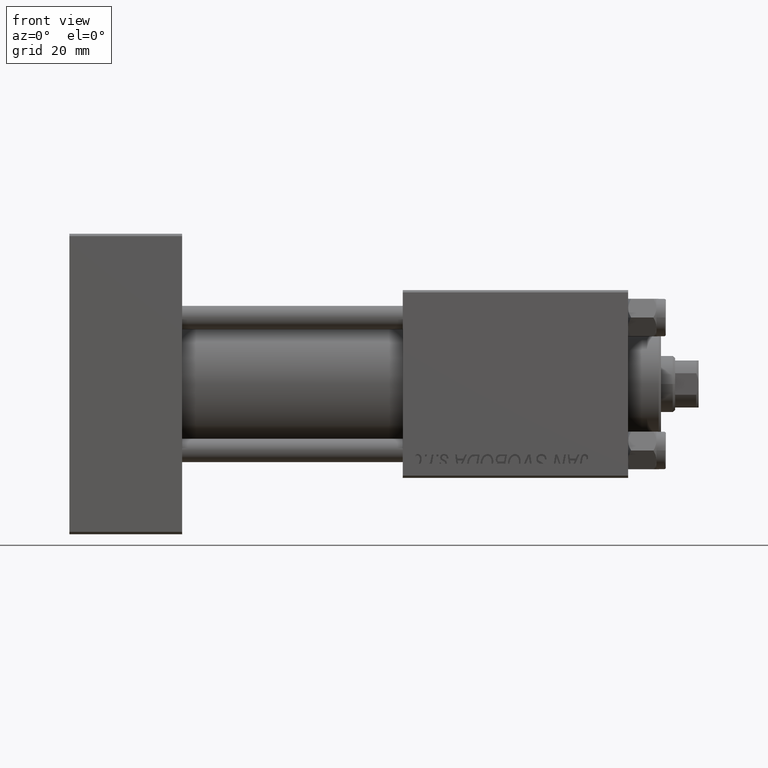
[diagram: clean part render]
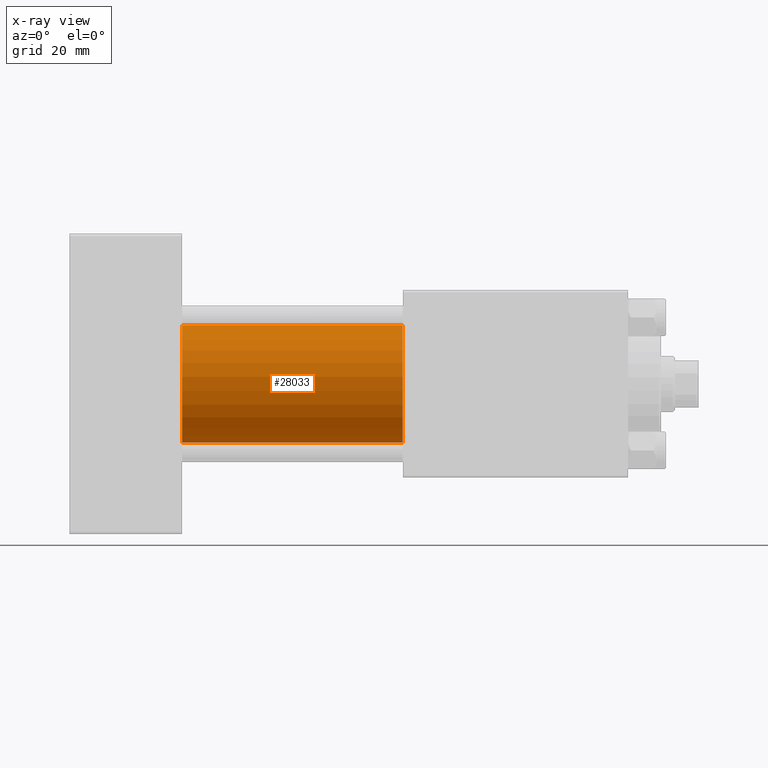
[diagram: x-ray — body ghosted, one internal face saturated and labeled with its STEP entity id]
A machine part, front view, then the same camera in x-ray: the body is ghosted and one INTERNAL B-rep face — a face not visible from any outside direction — is saturated and labeled: STEP entity #28033.
In plain terms, the highlighted cylindrical surface (partial cylindrical patch) has radius 12.5 mm, axis along (-1, -0, -0).
Its self-contained STEP definition (entity closure, byte-faithful):
#2 = LINE ( 'NONE', #15886, #1586 ) ;
#459 = AXIS2_PLACEMENT_3D ( 'NONE', #13330, #1845, #45173 ) ;
#1586 = VECTOR ( 'NONE', #4423, 1000.000000000000000 ) ;
#1845 = DIRECTION ( 'NONE',  ( -1.000000000000000000, -0.000000000000000000, -0.000000000000000000 ) ) ;
#2883 = CARTESIAN_POINT ( 'NONE',  ( 71.00000000000001421, -1.071276715031019515E-15, -12.49999999999999645 ) ) ;
#3508 = VERTEX_POINT ( 'NONE', #9058 ) ;
#4423 = DIRECTION ( 'NONE',  ( -1.000000000000000000, -0.000000000000000000, -0.000000000000000000 ) ) ;
#8198 = CARTESIAN_POINT ( 'NONE',  ( 24.00000000000000000, -1.071276715031019515E-15, -12.49999999999999645 ) ) ;
#8220 = ORIENTED_EDGE ( 'NONE', *, *, #18058, .T. ) ;
#9058 = CARTESIAN_POINT ( 'NONE',  ( 71.00000000000001421, -2.602085213965210642E-15, 12.49999999999999645 ) ) ;
#10712 = CARTESIAN_POINT ( 'NONE',  ( 71.00000000000001421, -1.071276715031019515E-15, -12.49999999999999645 ) ) ;
#11536 = VECTOR ( 'NONE', #42041, 1000.000000000000000 ) ;
#13330 = CARTESIAN_POINT ( 'NONE',  ( 71.00000000000001421, -2.602085213965210642E-15, 0.000000000000000000 ) ) ;
#15886 = CARTESIAN_POINT ( 'NONE',  ( 71.00000000000001421, -2.602085213965210642E-15, 12.49999999999999645 ) ) ;
#16332 = AXIS2_PLACEMENT_3D ( 'NONE', #32552, #28868, #48742 ) ;
#17397 = EDGE_CURVE ( 'NONE', #3508, #18396, #2, .T. ) ;
#18058 = EDGE_CURVE ( 'NONE', #3508, #19107, #49963, .T. ) ;
#18396 = VERTEX_POINT ( 'NONE', #38605 ) ;
#19107 = VERTEX_POINT ( 'NONE', #10712 ) ;
#19978 = EDGE_CURVE ( 'NONE', #19107, #30588, #45962, .T. ) ;
#21540 = EDGE_LOOP ( 'NONE', ( #8220, #32243, #38448, #24482 ) ) ;
#23254 = CARTESIAN_POINT ( 'NONE',  ( 71.00000000000001421, -2.602085213965210642E-15, 0.000000000000000000 ) ) ;
#24482 = ORIENTED_EDGE ( 'NONE', *, *, #17397, .F. ) ;
#28033 = ADVANCED_FACE ( 'NONE', ( #40999 ), #37589, .F. ) ;
#28868 = DIRECTION ( 'NONE',  ( 1.000000000000000000, 0.000000000000000000, 0.000000000000000000 ) ) ;
#30588 = VERTEX_POINT ( 'NONE', #8198 ) ;
#32243 = ORIENTED_EDGE ( 'NONE', *, *, #19978, .T. ) ;
#32552 = CARTESIAN_POINT ( 'NONE',  ( 24.00000000000000000, -2.602085213965210642E-15, 0.000000000000000000 ) ) ;
#33898 = EDGE_CURVE ( 'NONE', #18396, #30588, #43856, .T. ) ;
#37589 = CYLINDRICAL_SURFACE ( 'NONE', #459, 12.49999999999999645 ) ;
#38448 = ORIENTED_EDGE ( 'NONE', *, *, #33898, .F. ) ;
#38605 = CARTESIAN_POINT ( 'NONE',  ( 24.00000000000000000, -2.602085213965210642E-15, 12.49999999999999645 ) ) ;
#40999 = FACE_OUTER_BOUND ( 'NONE', #21540, .T. ) ;
#42041 = DIRECTION ( 'NONE',  ( -1.000000000000000000, -0.000000000000000000, -0.000000000000000000 ) ) ;
#43378 = DIRECTION ( 'NONE',  ( 0.000000000000000000, 0.000000000000000000, -1.000000000000000000 ) ) ;
#43856 = CIRCLE ( 'NONE', #16332, 12.49999999999999645 ) ;
#45173 = DIRECTION ( 'NONE',  ( 0.000000000000000000, 0.000000000000000000, 1.000000000000000000 ) ) ;
#45962 = LINE ( 'NONE', #2883, #11536 ) ;
#48742 = DIRECTION ( 'NONE',  ( 0.000000000000000000, 0.000000000000000000, -1.000000000000000000 ) ) ;
#49963 = CIRCLE ( 'NONE', #50780, 12.49999999999999645 ) ;
#50780 = AXIS2_PLACEMENT_3D ( 'NONE', #23254, #51222, #43378 ) ;
#51222 = DIRECTION ( 'NONE',  ( 1.000000000000000000, 0.000000000000000000, 0.000000000000000000 ) ) ;